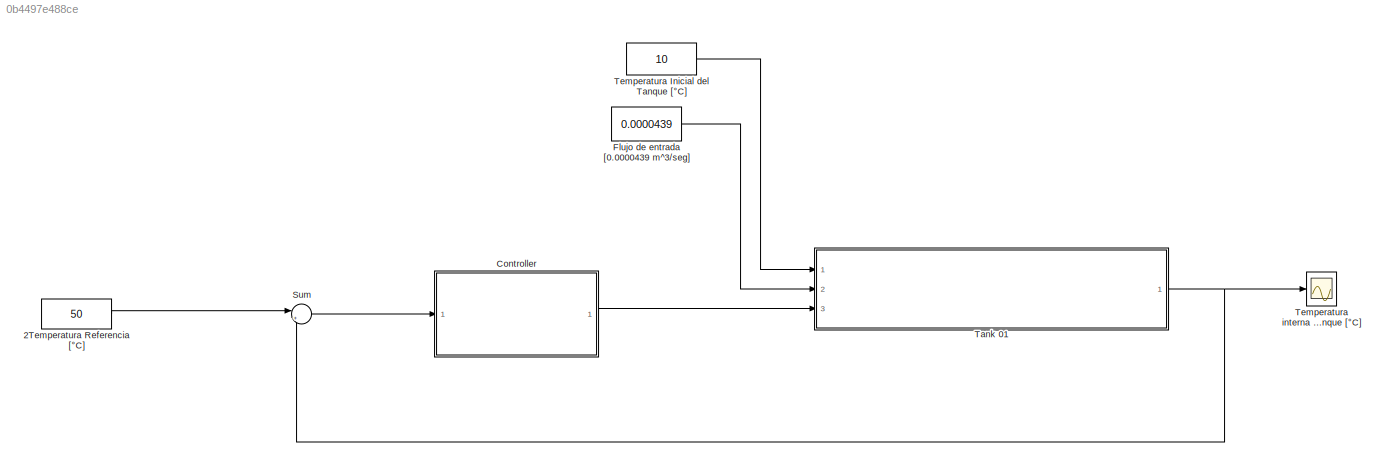
MODEL slx_0b4497e488ce
KIND model
BLOCK [Constant] 2Temperatura Referencia [°C]
  Value = 50
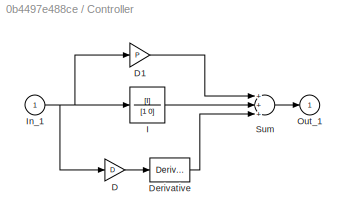
BLOCK [SubSystem] Controller
  FunctionWithSeparateData = off
  MaskHideContents = off
  MinAlgLoopOccurrences = off
  Opaque = off
  Ports = [1, 1]
  PropExecContextOutsideSubsystem = off
  RTWSystemCode = Auto
  RequestExecContextInheritance = off
BLOCK [Gain] Controller/D
  Gain = D
BLOCK [Gain] Controller/D1
  Gain = P
BLOCK [Derivative] Controller/Derivative
BLOCK [TransferFcn] Controller/I
  Denominator = [1 0]
  Numerator = [I]
BLOCK [Inport] Controller/In_1
  IconDisplay = Port number
BLOCK [Outport] Controller/Out_1
  IconDisplay = Port number
  InitialOutput = 0
BLOCK [Sum] Controller/Sum
  Inputs = +++
  Ports = [3, 1]
BLOCK [Constant] Flujo de entrada   [0.0000439 m^3//seg] 
  Value = 0.0000439
BLOCK [Sum] Sum
  IconShape = round
  InputSameDT = off
  Inputs = |+-
  OutDataTypeStr = Inherit: Inherit via internal rule
  Ports = [2, 1]
  SaturateOnIntegerOverflow = off
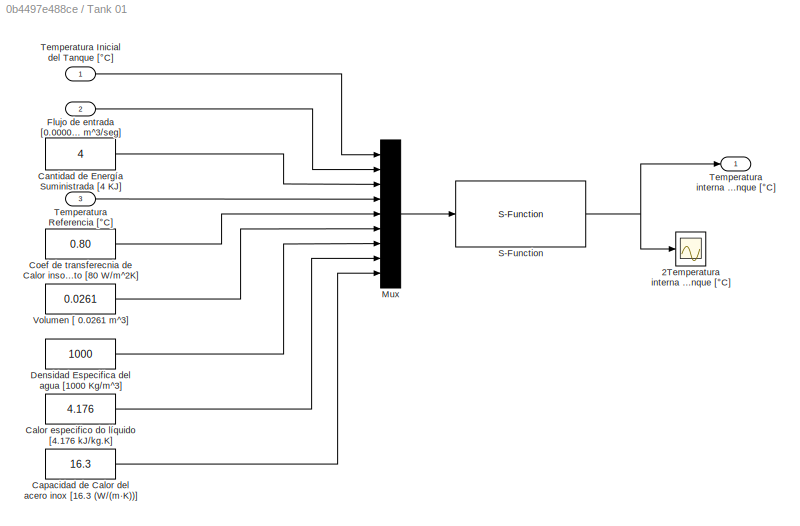
BLOCK [SubSystem] Tank 01
  FunctionWithSeparateData = off
  MaskHideContents = off
  MinAlgLoopOccurrences = off
  Opaque = off
  Ports = [3, 1]
  PropExecContextOutsideSubsystem = off
  RTWSystemCode = Auto
  RequestExecContextInheritance = off
BLOCK [Scope] Tank 01/2Temperatura interna del Tanque [°C]
  DataFormat = StructureWithTime
  Floating = off
  NumInputPorts = 1
  Ports = [1]
  SampleTime = 0
  ShowLegends = off
  TimeRange = 10
  YMax = 45
  YMin = 20
BLOCK [Constant] Tank 01/Calor especifico do líquido  [4.176 kJ//kg.K]
  Value = 4.176
BLOCK [Constant] Tank 01/Cantidad de Energía Suministrada  [4 KJ]
  Value = 4
BLOCK [Constant] Tank 01/Capacidad de Calor del acero inox [16.3 (W//(m·K))]
  Value = 16.3
BLOCK [Constant] Tank 01/Coef de transferecnia de Calor insolamiento [80 W//m^2K]
  Value = 0.80
BLOCK [Constant] Tank 01/Densidad Especifica del agua [1000 Kg//m^3]
  Value = 1000
BLOCK [Inport] Tank 01/Flujo de entrada   [0.0000439 m^3//seg]
  IconDisplay = Port number
  Port = 2
BLOCK [Mux] Tank 01/Mux
  DisplayOption = bar
  Inputs = 9
  Ports = [9, 1]
BLOCK [S-Function] Tank 01/S-Function
  EnableBusSupport = off
  FunctionName = Tank_01
  Ports = [1, 1]
BLOCK [Inport] Tank 01/Temperatura Inicial del Tanque [°C]
  IconDisplay = Port number
BLOCK [Inport] Tank 01/Temperatura Referencia [°C]
  IconDisplay = Port number
  Port = 3
BLOCK [Outport] Tank 01/Temperatura interna del Tanque [°C]
  IconDisplay = Port number
BLOCK [Constant] Tank 01/Volumen [ 0.0261 m^3]
  Value = 0.0261
BLOCK [Constant] Temperatura Inicial del Tanque [°C]
  Value = 10
BLOCK [Scope] Temperatura interna del Tanque [°C]
  DataFormat = StructureWithTime
  Floating = off
  NumInputPorts = 1
  Ports = [1]
  SampleTime = 0
  SaveName = TransResp
  SaveToWorkspace = on
  ShowLegends = off
  TimeRange = 10
  YMax = 45
  YMin = 20
LINE 2Temperatura Referencia [°C]:1 -> Sum:1
LINE Controller/D1:1 -> Controller/Sum:1
LINE Controller/D:1 -> Controller/Derivative:1
LINE Controller/Derivative:1 -> Controller/Sum:3
LINE Controller/I:1 -> Controller/Sum:2
NET Controller/In_1:1 -> Controller/D1:1, Controller/D:1, Controller/I:1
LINE Controller/Sum:1 -> Controller/Out_1:1
LINE Controller:1 -> Tank 01:3
LINE Flujo de entrada   [0.0000439 m^3//seg] :1 -> Tank 01:2
LINE Sum:1 -> Controller:1
LINE Tank 01/Calor especifico do líquido  [4.176 kJ//kg.K]:1 -> Tank 01/Mux:8
LINE Tank 01/Cantidad de Energía Suministrada  [4 KJ]:1 -> Tank 01/Mux:3
LINE Tank 01/Capacidad de Calor del acero inox [16.3 (W//(m·K))]:1 -> Tank 01/Mux:9
LINE Tank 01/Coef de transferecnia de Calor insolamiento [80 W//m^2K]:1 -> Tank 01/Mux:5
LINE Tank 01/Densidad Especifica del agua [1000 Kg//m^3]:1 -> Tank 01/Mux:7
LINE Tank 01/Flujo de entrada   [0.0000439 m^3//seg]:1 -> Tank 01/Mux:2
LINE Tank 01/Mux:1 -> Tank 01/S-Function:1
NET Tank 01/S-Function:1 -> Tank 01/2Temperatura interna del Tanque [°C]:1, Tank 01/Temperatura interna del Tanque [°C]:1
LINE Tank 01/Temperatura Inicial del Tanque [°C]:1 -> Tank 01/Mux:1
LINE Tank 01/Temperatura Referencia [°C]:1 -> Tank 01/Mux:4
LINE Tank 01/Volumen [ 0.0261 m^3]:1 -> Tank 01/Mux:6
NET Tank 01:1 -> Sum:2, Temperatura interna del Tanque [°C]:1
LINE Temperatura Inicial del Tanque [°C]:1 -> Tank 01:1
note: NET lines group one-source signal fan-out (src -> all destinations, sorted); 1:1 wires keep LINE
